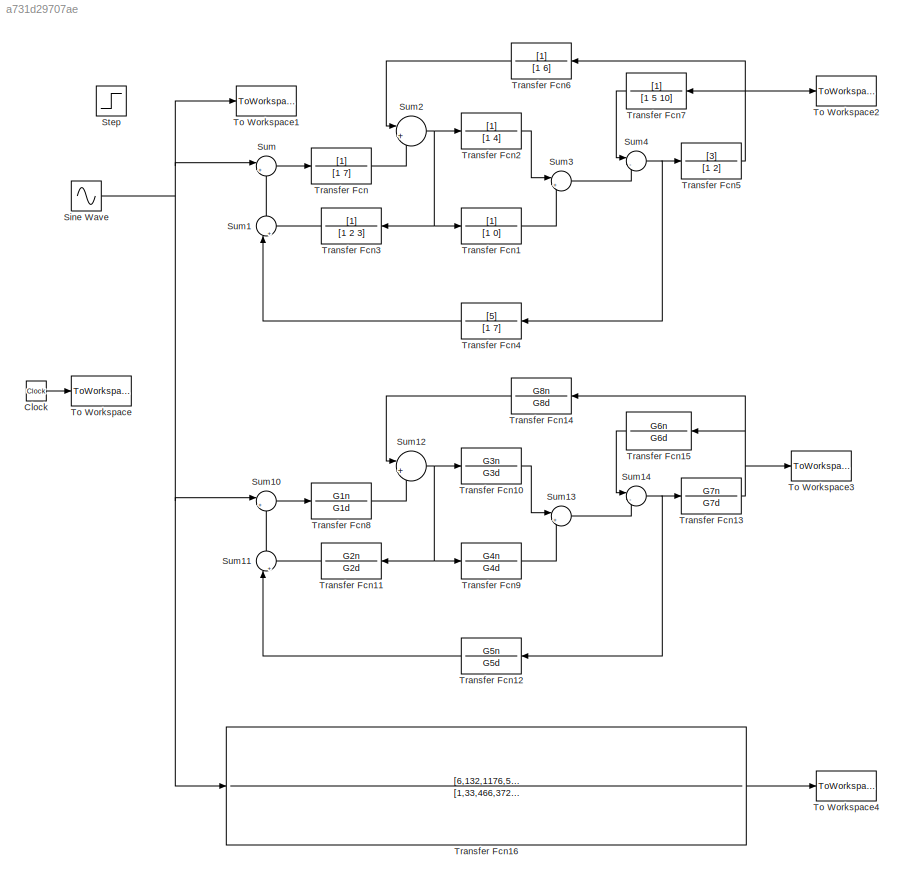
MODEL slx_a731d29707ae
KIND model
CONFIG InitFcn = G1n=1;\nG2n=1;\nG3n=1;\nG4n=1;\nG5n=5;\nG6n=1;\nG7n=3;\nG8n=1;\nG1d=[1 7];\nG2d=[1 2 3];\nG3d=[1 4];\nG4d=[1 0];\nG5d=[1 7];\nG6d=[1 5 10];\nG7d=[1 2];\nG8d=[1 6];
CONFIG StartFcn = G1n=1;\nG2n=1;\nG3n=1;\nG4n=1;\nG5n=5;\nG6n=1;\nG7n=3;\nG8n=1;\nG1d=[1 7];\nG2d=[1 2 3];\nG3d=[1 4];\nG4d=[1 0];\nG5d=[1 7];\nG6d=[1 5 10];\nG7d=[1 2];\nG8d=[1 6];
BLOCK [Clock] Clock
BLOCK [Sin] Sine Wave
  Frequency = 15
  Ports = [0, 1]
  SampleTime = 0
BLOCK [Step] Step
  SampleTime = 0
BLOCK [Sum] Sum
  IconShape = round
  InputSameDT = off
  Inputs = |+-
  OutDataTypeStr = Inherit: Inherit via internal rule
  Ports = [2, 1]
  SaturateOnIntegerOverflow = off
BLOCK [Sum] Sum1
  IconShape = round
  InputSameDT = off
  Inputs = |++
  OutDataTypeStr = Inherit: Inherit via internal rule
  Ports = [2, 1]
  SaturateOnIntegerOverflow = off
BLOCK [Sum] Sum10
  IconShape = round
  InputSameDT = off
  Inputs = |+-
  OutDataTypeStr = Inherit: Inherit via internal rule
  Ports = [2, 1]
  SaturateOnIntegerOverflow = off
BLOCK [Sum] Sum11
  IconShape = round
  InputSameDT = off
  Inputs = |++
  OutDataTypeStr = Inherit: Inherit via internal rule
  Ports = [2, 1]
  SaturateOnIntegerOverflow = off
BLOCK [Sum] Sum12
  IconShape = round
  InputSameDT = off
  Inputs = |++
  OutDataTypeStr = Inherit: Inherit via internal rule
  Ports = [2, 1]
  SaturateOnIntegerOverflow = off
BLOCK [Sum] Sum13
  IconShape = round
  InputSameDT = off
  Inputs = |++
  OutDataTypeStr = Inherit: Inherit via internal rule
  Ports = [2, 1]
  SaturateOnIntegerOverflow = off
BLOCK [Sum] Sum14
  IconShape = round
  InputSameDT = off
  Inputs = |-+
  OutDataTypeStr = Inherit: Inherit via internal rule
  Ports = [2, 1]
  SaturateOnIntegerOverflow = off
BLOCK [Sum] Sum2
  IconShape = round
  InputSameDT = off
  Inputs = |++
  OutDataTypeStr = Inherit: Inherit via internal rule
  Ports = [2, 1]
  SaturateOnIntegerOverflow = off
BLOCK [Sum] Sum3
  IconShape = round
  InputSameDT = off
  Inputs = |++
  OutDataTypeStr = Inherit: Inherit via internal rule
  Ports = [2, 1]
  SaturateOnIntegerOverflow = off
BLOCK [Sum] Sum4
  IconShape = round
  InputSameDT = off
  Inputs = |-+
  OutDataTypeStr = Inherit: Inherit via internal rule
  Ports = [2, 1]
  SaturateOnIntegerOverflow = off
BLOCK [ToWorkspace] To Workspace
  MaxDataPoints = inf
  Ports = [1]
  SampleTime = -1
  VariableName = Tiempo
BLOCK [ToWorkspace] To Workspace1
  MaxDataPoints = inf
  Ports = [1]
  SampleTime = -1
  VariableName = Entrada
BLOCK [ToWorkspace] To Workspace2
  MaxDataPoints = inf
  Ports = [1]
  SampleTime = -1
  VariableName = Salida1
BLOCK [ToWorkspace] To Workspace3
  MaxDataPoints = inf
  Ports = [1]
  SampleTime = -1
  VariableName = Salida2
BLOCK [ToWorkspace] To Workspace4
  MaxDataPoints = inf
  Ports = [1]
  SampleTime = -1
  VariableName = Salida3
BLOCK [TransferFcn] Transfer Fcn
  Denominator = [1 7]
BLOCK [TransferFcn] Transfer Fcn1
  Denominator = [1 0]
BLOCK [TransferFcn] Transfer Fcn10
  Denominator = G3d
  Numerator = G3n
BLOCK [TransferFcn] Transfer Fcn11
  Denominator = G2d
  Numerator = G2n
BLOCK [TransferFcn] Transfer Fcn12
  Denominator = G5d
  Numerator = G5n
BLOCK [TransferFcn] Transfer Fcn13
  Denominator = G7d
  Numerator = G7n
BLOCK [TransferFcn] Transfer Fcn14
  Denominator = G8d
  Numerator = G8n
BLOCK [TransferFcn] Transfer Fcn15
  Denominator = G6d
  Numerator = G6n
BLOCK [TransferFcn] Transfer Fcn16
  Denominator = [1,33,466,3720,18669,61822,136929,198122,172918,67368,-10440]
  Numerator = [6,132,1176,5640,1642,28572,29880,15120]
BLOCK [TransferFcn] Transfer Fcn2
  Denominator = [1 4]
BLOCK [TransferFcn] Transfer Fcn3
  Denominator = [1 2 3]
BLOCK [TransferFcn] Transfer Fcn4
  Denominator = [1 7]
  Numerator = [5]
BLOCK [TransferFcn] Transfer Fcn5
  Denominator = [1 2]
  Numerator = [3]
BLOCK [TransferFcn] Transfer Fcn6
  Denominator = [1 6]
BLOCK [TransferFcn] Transfer Fcn7
  Denominator = [1 5 10]
BLOCK [TransferFcn] Transfer Fcn8
  Denominator = G1d
  Numerator = G1n
BLOCK [TransferFcn] Transfer Fcn9
  Denominator = G4d
  Numerator = G4n
LINE Clock:1 -> To Workspace:1
NET Sine Wave:1 -> Sum10:1, Sum:1, To Workspace1:1, Transfer Fcn16:1
LINE Sum10:1 -> Transfer Fcn8:1
LINE Sum11:1 -> Sum10:2
NET Sum12:1 -> Transfer Fcn10:1, Transfer Fcn11:1, Transfer Fcn9:1
LINE Sum13:1 -> Sum14:2
NET Sum14:1 -> Transfer Fcn12:1, Transfer Fcn13:1
LINE Sum1:1 -> Sum:2
NET Sum2:1 -> Transfer Fcn1:1, Transfer Fcn2:1, Transfer Fcn3:1
LINE Sum3:1 -> Sum4:2
NET Sum4:1 -> Transfer Fcn4:1, Transfer Fcn5:1
LINE Sum:1 -> Transfer Fcn:1
LINE Transfer Fcn10:1 -> Sum13:1
LINE Transfer Fcn11:1 -> Sum11:2
LINE Transfer Fcn12:1 -> Sum11:1
NET Transfer Fcn13:1 -> To Workspace3:1, Transfer Fcn14:1, Transfer Fcn15:1
LINE Transfer Fcn14:1 -> Sum12:1
LINE Transfer Fcn15:1 -> Sum14:1
LINE Transfer Fcn16:1 -> To Workspace4:1
LINE Transfer Fcn1:1 -> Sum3:2
LINE Transfer Fcn2:1 -> Sum3:1
LINE Transfer Fcn3:1 -> Sum1:2
LINE Transfer Fcn4:1 -> Sum1:1
NET Transfer Fcn5:1 -> To Workspace2:1, Transfer Fcn6:1, Transfer Fcn7:1
LINE Transfer Fcn6:1 -> Sum2:1
LINE Transfer Fcn7:1 -> Sum4:1
LINE Transfer Fcn8:1 -> Sum12:2
LINE Transfer Fcn9:1 -> Sum13:2
LINE Transfer Fcn:1 -> Sum2:2
note: NET lines group one-source signal fan-out (src -> all destinations, sorted); 1:1 wires keep LINE
